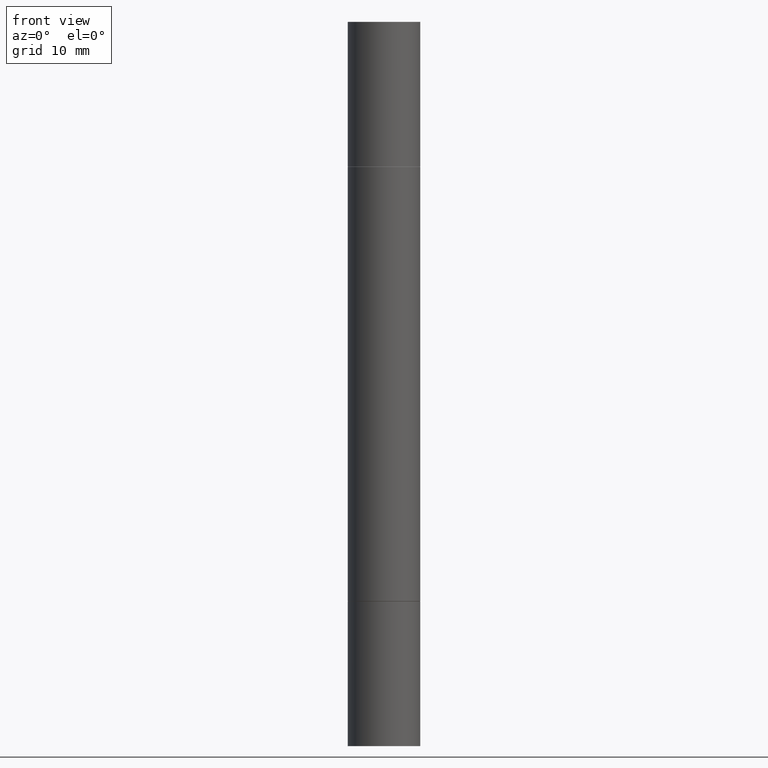
[diagram: clean part render]
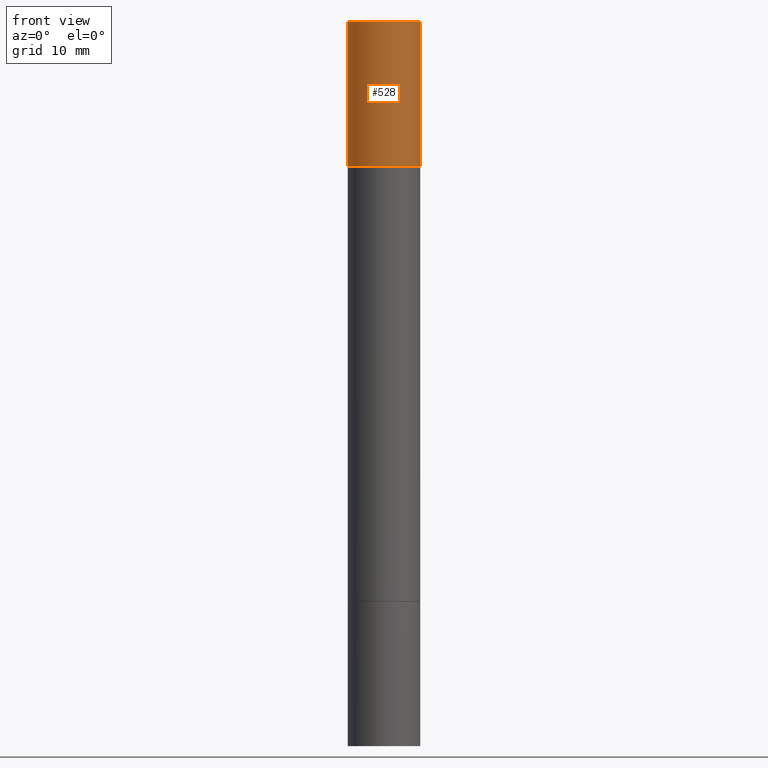
[diagram: same view with one face highlighted and labeled with its STEP entity id]
A machine part, front view. The second image highlights one B-rep face of the part: STEP entity #528.
In plain terms, the highlighted cylindrical surface (edge-blend (fillet) strip) has radius 3.175 mm, axis along (-0, -0, -1).
Its self-contained STEP definition (entity closure, byte-faithful):
#2 = VECTOR ( 'NONE', #573, 39.37007874015748143 ) ;
#7 = ORIENTED_EDGE ( 'NONE', *, *, #37, .T. ) ;
#11 = VERTEX_POINT ( 'NONE', #428 ) ;
#35 = VECTOR ( 'NONE', #130, 39.37007874015748143 ) ;
#37 = EDGE_CURVE ( 'NONE', #11, #326, #669, .T. ) ;
#40 = CARTESIAN_POINT ( 'NONE',  ( 0.1250000000000000000, -8.711089938250227947E-16, 5.463695987328526437E-16 ) ) ;
#72 = CARTESIAN_POINT ( 'NONE',  ( 4.890937612370273194E-29, -1.744683864890115301E-15, -0.4999999999999996114 ) ) ;
#93 = DIRECTION ( 'NONE',  ( 2.445468806185136597E-29, 3.492890411551752677E-15, 1.000000000000000000 ) ) ;
#127 = DIRECTION ( 'NONE',  ( 2.445468806185136597E-29, 3.492890411551752677E-15, 1.000000000000000000 ) ) ;
#130 = DIRECTION ( 'NONE',  ( -2.445468806185136877E-29, -3.492890411551753071E-15, -1.000000000000000000 ) ) ;
#138 = EDGE_LOOP ( 'NONE', ( #337, #7, #548, #240 ) ) ;
#144 = DIRECTION ( 'NONE',  ( 1.000000000000000000, -6.982962677686266711E-15, 0.000000000000000000 ) ) ;
#183 = VERTEX_POINT ( 'NONE', #637 ) ;
#194 = DIRECTION ( 'NONE',  ( 1.000000000000000000, -6.982962677686270655E-15, 0.000000000000000000 ) ) ;
#197 = CARTESIAN_POINT ( 'NONE',  ( 0.000000000000000000, -8.730464687993621641E-15, -2.499999999999999556 ) ) ;
#223 = AXIS2_PLACEMENT_3D ( 'NONE', #72, #127, #228 ) ;
#228 = DIRECTION ( 'NONE',  ( 1.000000000000000000, -6.982962677686266711E-15, 0.000000000000000000 ) ) ;
#240 = ORIENTED_EDGE ( 'NONE', *, *, #397, .F. ) ;
#259 = CYLINDRICAL_SURFACE ( 'NONE', #319, 0.1250000000000000000 ) ;
#314 = FACE_OUTER_BOUND ( 'NONE', #138, .T. ) ;
#319 = AXIS2_PLACEMENT_3D ( 'NONE', #197, #476, #194 ) ;
#326 = VERTEX_POINT ( 'NONE', #606 ) ;
#334 = EDGE_CURVE ( 'NONE', #326, #183, #516, .T. ) ;
#337 = ORIENTED_EDGE ( 'NONE', *, *, #505, .F. ) ;
#397 = EDGE_CURVE ( 'NONE', #414, #183, #464, .T. ) ;
#414 = VERTEX_POINT ( 'NONE', #40 ) ;
#428 = CARTESIAN_POINT ( 'NONE',  ( -0.1250000000000000000, -1.389901228073636467E-17, 5.463695987328557991E-16 ) ) ;
#459 = AXIS2_PLACEMENT_3D ( 'NONE', #580, #93, #144 ) ;
#464 = LINE ( 'NONE', #651, #35 ) ;
#476 = DIRECTION ( 'NONE',  ( -2.445468806185136597E-29, -3.492890411551752677E-15, -1.000000000000000000 ) ) ;
#505 = EDGE_CURVE ( 'NONE', #11, #414, #601, .T. ) ;
#516 = CIRCLE ( 'NONE', #223, 0.1250000000000000000 ) ;
#528 = ADVANCED_FACE ( 'NONE', ( #314 ), #259, .T. ) ;
#548 = ORIENTED_EDGE ( 'NONE', *, *, #334, .T. ) ;
#565 = CARTESIAN_POINT ( 'NONE',  ( -0.1250000000000000000, -7.872902438272180196E-15, -2.499999999999999556 ) ) ;
#573 = DIRECTION ( 'NONE',  ( -2.445468806185136877E-29, -3.492890411551753071E-15, -1.000000000000000000 ) ) ;
#580 = CARTESIAN_POINT ( 'NONE',  ( 6.113672015462842613E-29, 1.761340885760521790E-18, 5.463695987328526437E-16 ) ) ;
#601 = CIRCLE ( 'NONE', #459, 0.1250000000000000000 ) ;
#606 = CARTESIAN_POINT ( 'NONE',  ( -0.1250000000000000000, -1.389901228073636467E-17, -0.4999999999999996114 ) ) ;
#637 = CARTESIAN_POINT ( 'NONE',  ( 0.1250000000000000000, -2.617554199600898443E-15, -0.4999999999999996114 ) ) ;
#651 = CARTESIAN_POINT ( 'NONE',  ( 0.1250000000000000000, -9.603335022704404980E-15, -2.499999999999999556 ) ) ;
#669 = LINE ( 'NONE', #565, #2 ) ;